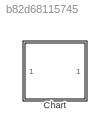
MODEL slx_b82d68115745
KIND model
CONFIG AbsTol = auto
CONFIG EnableMultiTasking = off
CONFIG FixedStep = 0.01
CONFIG MaxStep = auto
CONFIG MinStep = auto
CONFIG RelTol = 1e-3
CONFIG SampleTimeConstraint = Unconstrained
CONFIG Solver = FixedStepAuto
CONFIG SolverName = FixedStepAuto
CONFIG StartTime = 0.0
CONFIG StopTime = 300
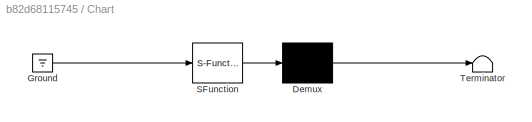
BLOCK [SubSystem] Chart
  ErrorFcn = Stateflow.Translate.translate
  PermitHierarchicalResolution = ExplicitOnly
  Ports = []
  RequestExecContextInheritance = off
  SFBlockType = Chart
  TreatAsAtomicUnit = on
BLOCK [Demux] Chart/ Demux 
  Outputs = 1
  Ports = [1, 1]
BLOCK [Ground] Chart/ Ground 
BLOCK [S-Function] Chart/ SFunction 
  EnableBusSupport = on
  FunctionName = sf_sfun
  PortCounts = [1 1]
  Ports = [1, 1]
  SFcnIsStateOwnerBlock = off
  SFunctionDeploymentMode = off
  Tag = Stateflow S-Function 3
BLOCK [Terminator] Chart/ Terminator 
CHART Chart states=6 transitions=12
  STATE_LABEL 'B21\ndu:\n  v_dot = -t - 2.5;\n  x_dot = 0;\n  t_dot = 1;'
  STATE_LABEL 'B22\ndu:\n  v_dot = -5;\n  x_dot = 0;\n  t_dot = 0;'
  STATE_LABEL 'B11\ndu:\n  v_dot = -t - 1.2;\n  x_dot = 0;\n  t_dot = 0.5;'
  STATE_LABEL 'B12\ndu:\n  v_dot = -2.5;\n  x_dot = 0;\n  t_dot = 0;'
  STATE_LABEL 'N\ndu:\n  v_dot = -0.001 * x - 0.052 * v;\n  x_dot = v;\n  t_dot = 0;'
  STATE_LABEL 'A\ndu:\n  v_dot = 1.5;\n  x_dot = 0;\n  t_dot = 0;'
CHART  states=0 transitions=0
